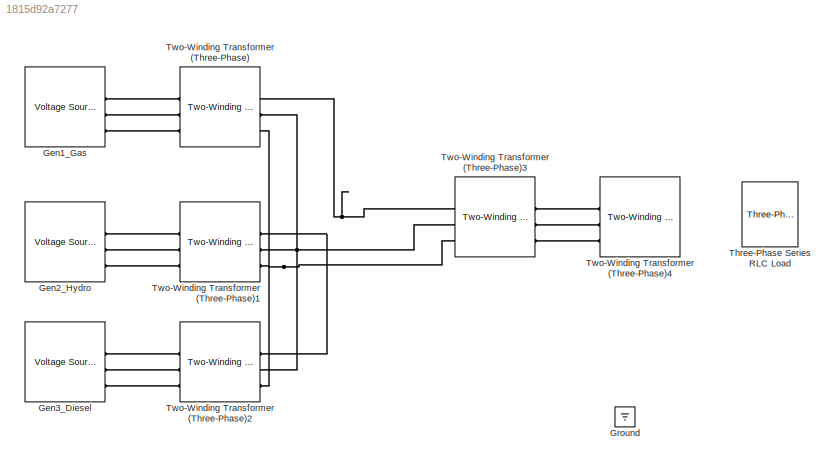
MODEL slx_1815d92a7277
KIND model
CONFIG AbsTol = auto
CONFIG EnableMultiTasking = off
CONFIG FixedStep = auto
CONFIG MaxStep = auto
CONFIG MinStep = auto
CONFIG RelTol = 1e-3
CONFIG SampleTimeConstraint = Unconstrained
CONFIG SolverName = VariableStepAuto
CONFIG StartTime = 0.0
CONFIG StopTime = 10.0
BLOCK [Reference] Gen1_Gas  REF=ee_lib/Sources/Voltage
Source
(Three-Phase)
  SourceBlock = ee_lib/Sources/Voltage\nSource\n(Three-Phase)
  SourceType = Voltage\nSource\n(Three-Phase)
BLOCK [Reference] Gen2_Hydro  REF=ee_lib/Sources/Voltage
Source
(Three-Phase)
  SourceBlock = ee_lib/Sources/Voltage\nSource\n(Three-Phase)
  SourceType = Voltage\nSource\n(Three-Phase)
BLOCK [Reference] Gen3_Diesel  REF=ee_lib/Sources/Voltage
Source
(Three-Phase)
  SourceBlock = ee_lib/Sources/Voltage\nSource\n(Three-Phase)
  SourceType = Voltage\nSource\n(Three-Phase)
BLOCK [Ground] Ground
BLOCK [Reference] Three-Phase Series RLC Load  REF=spsThreePhaseSeriesRLCLoadLib/Three-Phase
Series RLC Load
  AttributesFormatString = \n
  LibrarySourceBlock = sps_lib/Passives/Three-Phase\nSeries RLC Load
  SourceBlock = spsThreePhaseSeriesRLCLoadLib/Three-Phase\nSeries RLC Load
  SourceType = Three-Phase Series RLC Load
BLOCK [Reference] Two-Winding Transformer (Three-Phase)  REF=ee_lib/Passive/Transformers/Two-Winding
Transformer
(Three-Phase)
  SourceBlock = ee_lib/Passive/Transformers/Two-Winding\nTransformer\n(Three-Phase)
  SourceType = Two-Winding\nTransformer\n(Three-Phase)
BLOCK [Reference] Two-Winding Transformer (Three-Phase)1  REF=ee_lib/Passive/Transformers/Two-Winding
Transformer
(Three-Phase)
  SourceBlock = ee_lib/Passive/Transformers/Two-Winding\nTransformer\n(Three-Phase)
  SourceType = Two-Winding\nTransformer\n(Three-Phase)
BLOCK [Reference] Two-Winding Transformer (Three-Phase)2  REF=ee_lib/Passive/Transformers/Two-Winding
Transformer
(Three-Phase)
  SourceBlock = ee_lib/Passive/Transformers/Two-Winding\nTransformer\n(Three-Phase)
  SourceType = Two-Winding\nTransformer\n(Three-Phase)
BLOCK [Reference] Two-Winding Transformer (Three-Phase)3  REF=ee_lib/Passive/Transformers/Two-Winding
Transformer
(Three-Phase)
  SourceBlock = ee_lib/Passive/Transformers/Two-Winding\nTransformer\n(Three-Phase)
  SourceType = Two-Winding\nTransformer\n(Three-Phase)
BLOCK [Reference] Two-Winding Transformer (Three-Phase)4  REF=ee_lib/Passive/Transformers/Two-Winding
Transformer
(Three-Phase)
  SourceBlock = ee_lib/Passive/Transformers/Two-Winding\nTransformer\n(Three-Phase)
  SourceType = Two-Winding\nTransformer\n(Three-Phase)
PLINE Gen1_Gas:RConn1 -- Two-Winding Transformer (Three-Phase):LConn1
PLINE Gen1_Gas:RConn2 -- Two-Winding Transformer (Three-Phase):LConn2
PLINE Gen1_Gas:RConn3 -- Two-Winding Transformer (Three-Phase):LConn3
PLINE Gen2_Hydro:RConn1 -- Two-Winding Transformer (Three-Phase)1:LConn1
PLINE Gen2_Hydro:RConn2 -- Two-Winding Transformer (Three-Phase)1:LConn2
PLINE Gen2_Hydro:RConn3 -- Two-Winding Transformer (Three-Phase)1:LConn3
PLINE Gen3_Diesel:RConn1 -- Two-Winding Transformer (Three-Phase)2:LConn1
PLINE Gen3_Diesel:RConn2 -- Two-Winding Transformer (Three-Phase)2:LConn2
PLINE Gen3_Diesel:RConn3 -- Two-Winding Transformer (Three-Phase)2:LConn3
PNET net1: Two-Winding Transformer (Three-Phase)1:RConn1 -- Two-Winding Transformer (Three-Phase)2:RConn1 -- Two-Winding Transformer (Three-Phase)3:LConn1 -- Two-Winding Transformer (Three-Phase):RConn1
PNET net2: Two-Winding Transformer (Three-Phase)1:RConn2 -- Two-Winding Transformer (Three-Phase)2:RConn2 -- Two-Winding Transformer (Three-Phase)3:LConn2 -- Two-Winding Transformer (Three-Phase):RConn2
PNET net3: Two-Winding Transformer (Three-Phase)1:RConn3 -- Two-Winding Transformer (Three-Phase)2:RConn3 -- Two-Winding Transformer (Three-Phase)3:LConn3 -- Two-Winding Transformer (Three-Phase):RConn3
PLINE Two-Winding Transformer (Three-Phase)3:RConn1 -- Two-Winding Transformer (Three-Phase)4:LConn1
PLINE Two-Winding Transformer (Three-Phase)3:RConn2 -- Two-Winding Transformer (Three-Phase)4:LConn2
PLINE Two-Winding Transformer (Three-Phase)3:RConn3 -- Two-Winding Transformer (Three-Phase)4:LConn3
note: PNET lines group multi-terminal physical nets as a canonical sorted terminal list (undirected conserving connections); 2-terminal nets keep the pairwise PLINE form
